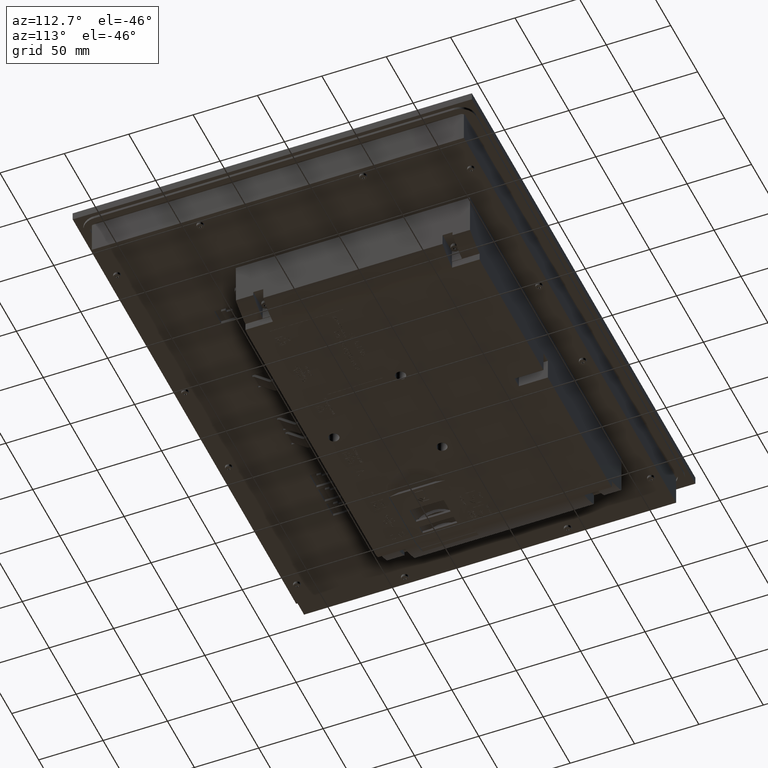
[diagram: clean part render]
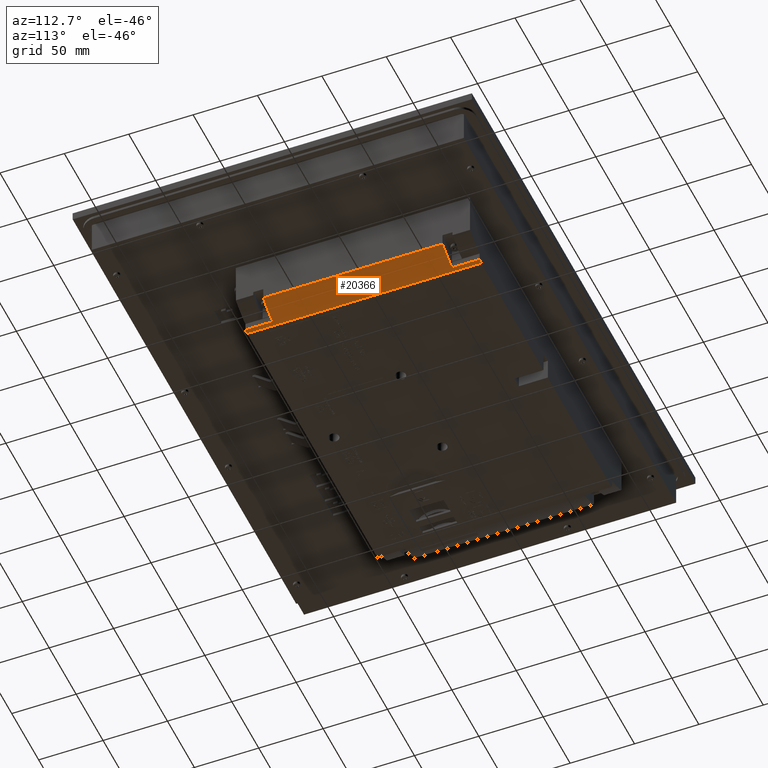
[diagram: same view with one face highlighted and labeled with its STEP entity id]
A machine part, auxiliary view. The second image highlights one B-rep face of the part: STEP entity #20366.
In plain terms, the highlighted cylindrical surface (partial cylindrical patch) has radius 60.0001 mm, axis along (0, -1, 0).
Its self-contained STEP definition (entity closure, byte-faithful):
#4418=LINE('',#72629,#9913);
#4448=LINE('',#72692,#9943);
#4450=LINE('',#72696,#9945);
#4451=LINE('',#72701,#9946);
#9913=VECTOR('',#59576,1.);
#9943=VECTOR('',#59618,1.);
#9945=VECTOR('',#59622,1.);
#9946=VECTOR('',#59627,1.);
#15343=FACE_OUTER_BOUND('',#24447,.T.);
#20366=ADVANCED_FACE('',(#15343),#23124,.T.);
#23124=CYLINDRICAL_SURFACE('',#54724,60.00007089151);
#24447=EDGE_LOOP('',(#29287,#29288,#29289,#29290,#29291,#29292,#29293,#29294));
#29287=ORIENTED_EDGE('',*,*,#47226,.F.);
#29288=ORIENTED_EDGE('',*,*,#47227,.F.);
#29289=ORIENTED_EDGE('',*,*,#47224,.T.);
#29290=ORIENTED_EDGE('',*,*,#47228,.F.);
#29291=ORIENTED_EDGE('',*,*,#47229,.F.);
#29292=ORIENTED_EDGE('',*,*,#47230,.T.);
#29293=ORIENTED_EDGE('',*,*,#47191,.F.);
#29294=ORIENTED_EDGE('',*,*,#47204,.F.);
#42151=VERTEX_POINT('',#72628);
#42152=VERTEX_POINT('',#72630);
#42161=VERTEX_POINT('',#72652);
#42178=VERTEX_POINT('',#72691);
#42179=VERTEX_POINT('',#72693);
#42180=VERTEX_POINT('',#72697);
#42181=VERTEX_POINT('',#72700);
#42182=VERTEX_POINT('',#72702);
#47191=EDGE_CURVE('',#42151,#42152,#4418,.T.);
#47204=EDGE_CURVE('',#42161,#42151,#53582,.T.);
#47224=EDGE_CURVE('',#42179,#42178,#4448,.T.);
#47226=EDGE_CURVE('',#42180,#42161,#4450,.T.);
#47227=EDGE_CURVE('',#42179,#42180,#53583,.T.);
#47228=EDGE_CURVE('',#42181,#42178,#53584,.T.);
#47229=EDGE_CURVE('',#42182,#42181,#4451,.T.);
#47230=EDGE_CURVE('',#42182,#42152,#53585,.T.);
#53582=CIRCLE('',#54717,60.00007089151);
#53583=CIRCLE('',#54721,60.00007089151);
#53584=CIRCLE('',#54722,60.00007089151);
#53585=CIRCLE('',#54723,60.00007089151);
#54717=AXIS2_PLACEMENT_3D('',#72653,#59593,#59594);
#54721=AXIS2_PLACEMENT_3D('',#72698,#59623,#59624);
#54722=AXIS2_PLACEMENT_3D('',#72699,#59625,#59626);
#54723=AXIS2_PLACEMENT_3D('',#72703,#59628,#59629);
#54724=AXIS2_PLACEMENT_3D('',#72704,#59630,#59631);
#59576=DIRECTION('',(0.,1.,0.));
#59593=DIRECTION('',(0.,-1.,0.));
#59594=DIRECTION('',(0.,0.,1.));
#59618=DIRECTION('',(0.,1.,0.));
#59622=DIRECTION('',(0.,-1.,0.));
#59623=DIRECTION('',(0.,-1.,0.));
#59624=DIRECTION('',(0.,0.,-1.));
#59625=DIRECTION('',(0.,1.,0.));
#59626=DIRECTION('',(0.,0.,1.));
#59627=DIRECTION('',(0.,-1.,0.));
#59628=DIRECTION('',(0.,-1.,0.));
#59629=DIRECTION('',(-1.,0.,1.73472142635978E-016));
#59630=DIRECTION('',(0.,1.,0.));
#59631=DIRECTION('',(0.,0.,1.));
#72628=CARTESIAN_POINT('',(-119.500005295459,-125.58730192373,-75.5999999998899));
#72629=CARTESIAN_POINT('',(-119.500005295459,-143.61269807627,-75.5999999998899));
#72630=CARTESIAN_POINT('',(-119.500005295459,56.38730192373,-75.6));
#72652=CARTESIAN_POINT('',(-122.72475017102,-125.58730192373,-74.9113688106157));
#72653=CARTESIAN_POINT('',(-108.586854133333,-125.58730192373,-16.6007488292283));
#72691=CARTESIAN_POINT('',(-140.4873019237,35.00470192373,-67.4177729231314));
#72692=CARTESIAN_POINT('',(-140.4873019237,-143.61269807627,-67.4177729231314));
#72693=CARTESIAN_POINT('',(-140.4873019237,-104.20470192373,-67.4177729231314));
#72696=CARTESIAN_POINT('',(-122.72475017102,-143.61269807627,-74.9113688106157));
#72697=CARTESIAN_POINT('',(-122.72475017102,-104.20470192373,-74.9113688106157));
#72698=CARTESIAN_POINT('',(-108.586854133333,-104.20470192373,-16.6007488292283));
#72699=CARTESIAN_POINT('',(-108.586854133333,35.00470192373,-16.6007488292283));
#72700=CARTESIAN_POINT('',(-122.72475017102,35.00470192373,-74.9113688106157));
#72701=CARTESIAN_POINT('',(-122.72475017102,-143.61269807627,-74.9113688106157));
#72702=CARTESIAN_POINT('',(-122.72475017102,56.38730192373,-74.9113688106157));
#72703=CARTESIAN_POINT('',(-108.586854133333,56.38730192373,-16.6007488292283));
#72704=CARTESIAN_POINT('',(-108.586854133333,-143.61269807627,-16.6007488292283));